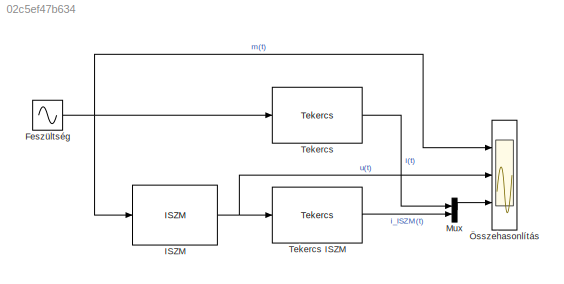
MODEL slx_02c5ef47b634
KIND model
BLOCK [Sin] Feszültség
  Amplitude = 6
  Frequency = 2*pi*100
  Ports = [0, 1]
  SampleTime = 0
BLOCK [Reference] ISZM  REF=RI_MK/ISZM
  Ports = [1, 1]
  SourceBlock = RI_MK/ISZM
  SourceType = Impulzusszélesség-modulátor
  T_S = 0.25e-6
  U_T = 12
  f_ISZM = 25000
BLOCK [Mux] Mux
  DisplayOption = bar
  Inputs = 2
  Ports = [2, 1]
BLOCK [Reference] Tekercs  REF=RI_MK/Tekercs
  L = 1e-3
  Ports = [1, 1]
  R = 1
  SourceBlock = RI_MK/Tekercs
  SourceType = Tekercs
  i_0 = 0
BLOCK [Reference] Tekercs ISZM  REF=RI_MK/Tekercs
  L = 1e-3
  Ports = [1, 1]
  R = 1
  SourceBlock = RI_MK/Tekercs
  SourceType = Tekercs
  i_0 = 0
BLOCK [Scope] Összehasonlítás
  DataFormat = StructureWithTime
  Floating = off
  LimitDataPoints = off
  NumInputPorts = 3
  Ports = [3]
  SampleTime = 0
  ShowLegends = on
  TimeRange = 0.01
  YMax = 6~15~6
  YMin = -6~-15~-6
NET Feszültség:1 -> ISZM:1, Tekercs:1, Összehasonlítás:1
NET ISZM:1 -> Tekercs ISZM:1, Összehasonlítás:2
LINE Mux:1 -> Összehasonlítás:3
LINE Tekercs ISZM:1 -> Mux:2
LINE Tekercs:1 -> Mux:1
note: NET lines group one-source signal fan-out (src -> all destinations, sorted); 1:1 wires keep LINE
